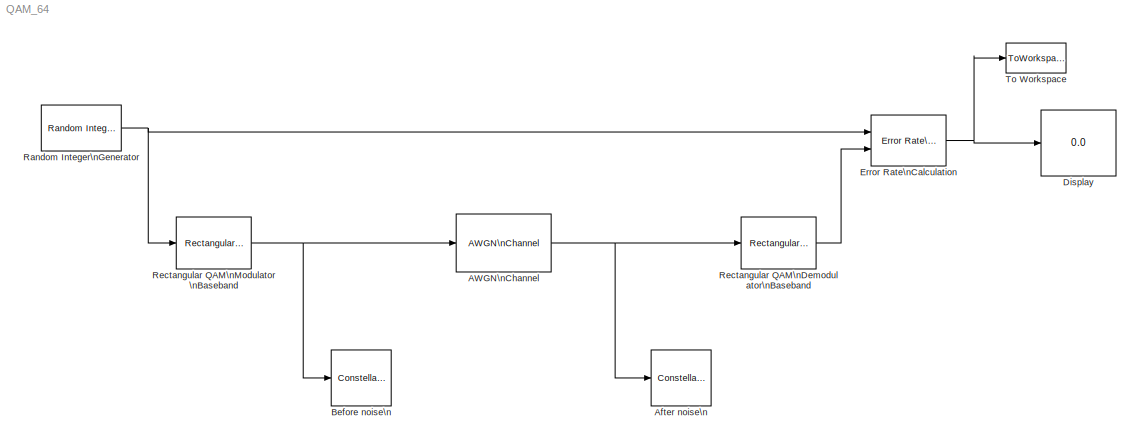
MODEL QAM_64
KIND model
BLOCK [Reference] AWGN\nChannel  REF=commchan3/AWGN\nChannel
  EbNodB = EbNo
  EsNodB = 10
  InputProcessing = Columns as channels (frame based)
  Ports = [1, 1]
  Ps = 1
  SID = 1
  SNRdB = 10
  SourceBlock = commchan3/AWGN\nChannel
  SourceType = AWGN Channel
  Tsym = 1
  UserData = DataTag0
  UserDataPersistent = on
  bitsPerSym = 1
  noiseMode = Signal to noise ratio  (Eb/No)
  seed = 67
  variance = 1
BLOCK [ConstellationDiagram] After noise\n
  Ports = [1]
  SID = 2
  ScopeSpecificationString = comm.scopes.ConstellationDiagramBlockCfg('CurrentConfiguration', extmgr.ConfigurationSet(extmgr.Configuration('Core','General UI',true),extmgr.Configuration('Core','Source UI',true),extmgr.Configuration('Sources','WiredSimulink',true),extmgr.Configuration('Visuals','Constellation',true,'AxesProperties',struct('Color',[0 0 0],'XColor',[0.686274509803922 0.686274509803922 0.686274509803922],'YColor'...<+676ch>
BLOCK [ConstellationDiagram] Before noise\n
  Ports = [1]
  SID = 3
  ScopeSpecificationString = comm.scopes.ConstellationDiagramBlockCfg('CurrentConfiguration', extmgr.ConfigurationSet(extmgr.Configuration('Core','General UI',true),extmgr.Configuration('Core','Source UI',true),extmgr.Configuration('Sources','WiredSimulink',true),extmgr.Configuration('Visuals','Constellation',true,'AxesProperties',struct('Color',[0 0 0],'XColor',[0.686274509803922 0.686274509803922 0.686274509803922],'YColor'...<+674ch>
BLOCK [Display] Display
  Decimation = 1
  Ports = [1]
  SID = 4
BLOCK [Reference] Error Rate\nCalculation  REF=commsink2/Error Rate\nCalculation
  N = 0
  PMode = Port
  Ports = [2, 1]
  RsMode2 = off
  SID = 5
  SourceBlock = commsink2/Error Rate\nCalculation
  SourceType = Error Rate Calculation
  WsName = ErrorVec
  cp_mode = Entire frame
  maxBits = 1e4
  numErr = 100
  st_delay = 0
  stop = on
  subframe = []
BLOCK [Reference] Random Integer\nGenerator  REF=commrandsrc3/Random Integer\nGenerator
  OutputDataType = double
  Ports = [0, 1]
  SID = 8
  SampleTime = 1
  SamplesPerFrame = 100
  Seed = 37
  SeedSource = Parameter
  SetSize = 64
  SimulateUsing = Interpreted execution
  SourceBlock = commrandsrc3/Random Integer\nGenerator
  SourceType = Random Integer Generator
BLOCK [Reference] Rectangular QAM\nDemodulator\nBaseband  REF=commdigbbndam3/Rectangular QAM\nDemodulator\nBaseband
  AvgPow = 1
  Dec = Gray
  DecType = Hard decision
  M = 64
  Mapping = [0:15]
  MinDist = 2
  OutType = Integer
  PeakPow = 1
  Ph = 0
  Ports = [1, 1]
  PowType = Average Power
  SID = 9
  SourceBlock = commdigbbndam3/Rectangular QAM\nDemodulator\nBaseband
  SourceType = Rectangular QAM Demodulator Baseband
  VarSource = Dialog
  Variance = 1
  denormFactorDTMode = Same word length as input
  denormFactorDataTypeStr = Inherit: Same word length as input
  denormFactorLastDataTypeStr = Inherit: Same word length as input
  denormFactorWordLen = 16
  derotateFactorDTMode = Same word length as input
  derotateFactorDataTypeStr = Inherit: Same word length as input
  derotateFactorLastDataTypeStr = Inherit: Same word length as input
  derotateFactorWordLen = 16
  outDtype1 = Inherit via internal rule
  outDtype2 = Inherit via internal rule
  prodOutDTMode = Inherit via internal rule
  prodOutDataTypeStr = Inherit: Inherit via internal rule
  prodOutLastDataTypeStr = Inherit: Inherit via internal rule
  prodOutOvFlMode = off
  prodOutOvFlModeLastStrValue = off
  prodOutOverflowMode = Wrap
  prodOutRoundingMode = Floor
  prodOutWordLen = 32
  sumDTMode = Inherit via internal rule
  sumDataTypeStr = Inherit: Inherit via internal rule
  sumLastDataTypeStr = Inherit: Inherit via internal rule
  sumWordLen = 32
BLOCK [Reference] Rectangular QAM\nModulator\nBaseband  REF=commdigbbndam3/Rectangular QAM\nModulator\nBaseband
  AvgPow = 1
  Enc = Gray
  InType = Integer
  M = 64
  Mapping = [0:15]
  MinDist = 2
  PeakPow = 1
  Ph = 0
  Ports = [1, 1]
  PowType = Average Power
  SID = 10
  SourceBlock = commdigbbndam3/Rectangular QAM\nModulator\nBaseband
  SourceType = Rectangular QAM Modulator Baseband
  outDataTypeStr = double
  outDtype = double
  outFracLen = 15
  outFracLenMode = Best precision
  outLastDataTypeStr = double
  outUDDataType = sfix(16)
  outWordLen = 16
BLOCK [ToWorkspace] To Workspace
  FixptAsFi = on
  MaxDataPoints = 2
  Ports = [1]
  SID = 11
  SampleTime = -1
  Save2DSignal = 2-D array (concatenate along first dimension)
  VariableName = qamBER
NET AWGN\nChannel:1 -> After noise\n:1, Rectangular QAM\nDemodulator\nBaseband:1
NET Error Rate\nCalculation:1 -> Display:1, To Workspace:1
NET Random Integer\nGenerator:1 -> Error Rate\nCalculation:1, Rectangular QAM\nModulator\nBaseband:1
LINE Rectangular QAM\nDemodulator\nBaseband:1 -> Error Rate\nCalculation:2
NET Rectangular QAM\nModulator\nBaseband:1 -> AWGN\nChannel:1, Before noise\n:1
note: NET lines group one-source signal fan-out (src -> all destinations, sorted); 1:1 wires keep LINE
